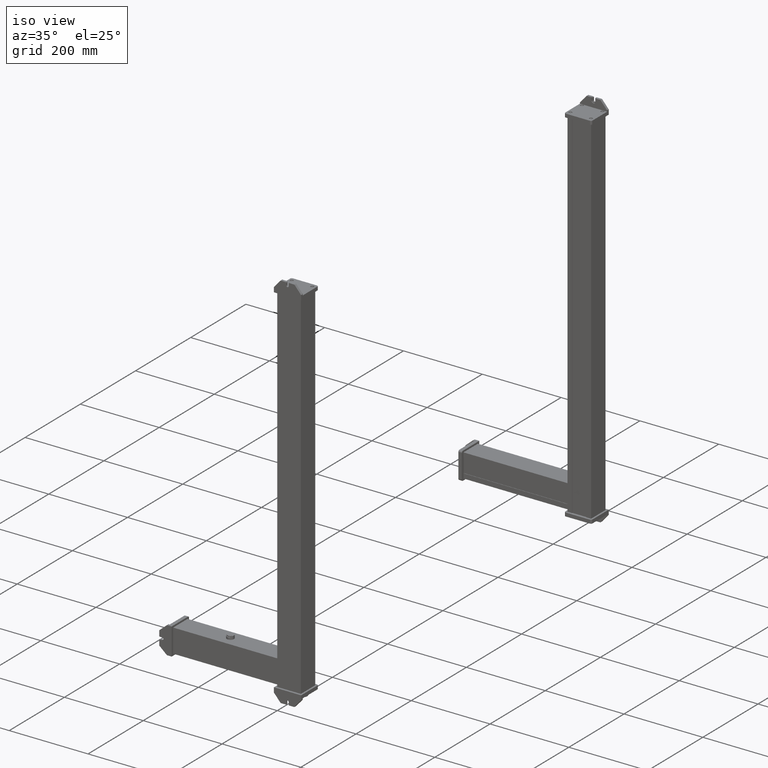
[diagram: clean part render]
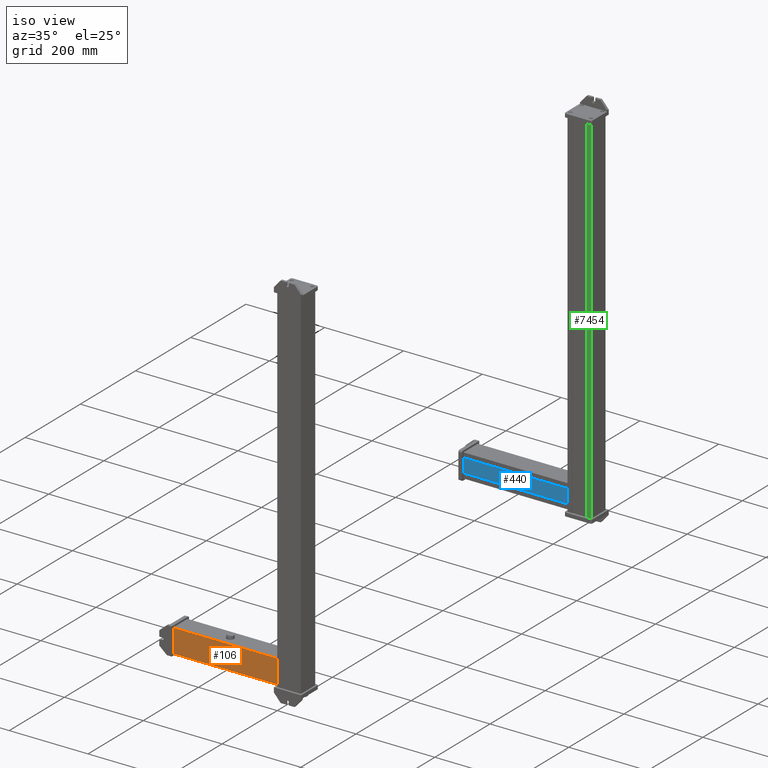
[diagram: same view with three faces highlighted in distinct colors, each labeled with its STEP entity id]
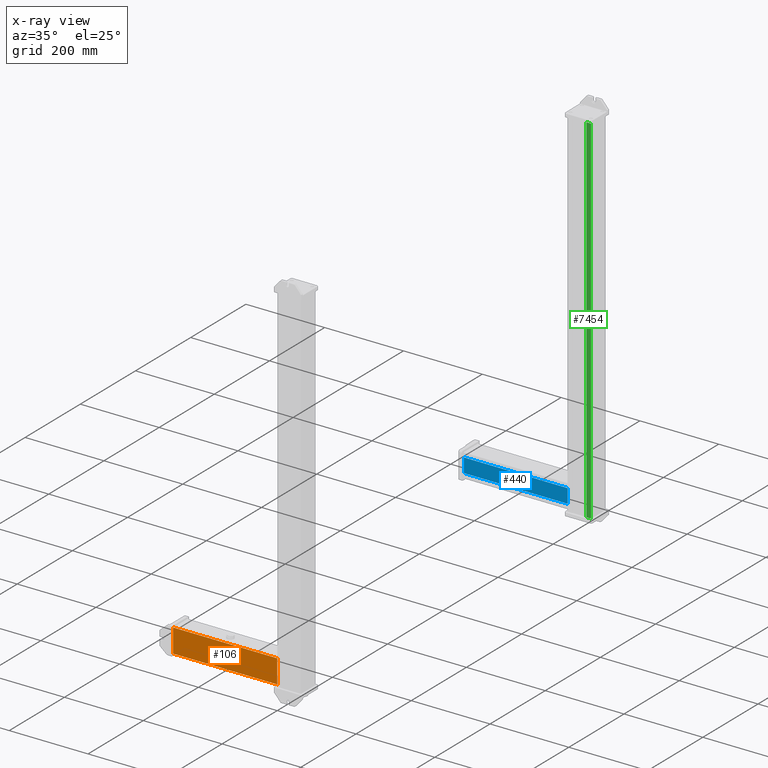
[diagram: x-ray of the same camera — body ghosted, the three highlighted faces saturated]
A machine part, iso view with three faces highlighted in distinct colors.
The next image is the same camera in x-ray (body ghosted, the three faces saturated) — at least one of them is partly hidden behind the body in this view.
Their STEP definitions:

[orange] entity #106 — the highlighted planar face has unit normal (-0, -1, -0).
#67=CARTESIAN_POINT('Axis2P3D Location',(0.,0.,0.)) ;
#72=CARTESIAN_POINT('Line Origine',(0.,0.,132.)) ;
#76=CARTESIAN_POINT('Vertex',(0.,0.,0.)) ;
#78=CARTESIAN_POINT('Vertex',(0.,0.,264.)) ;
#81=CARTESIAN_POINT('Line Origine',(30.,0.,0.)) ;
#85=CARTESIAN_POINT('Vertex',(60.,0.,0.)) ;
#88=CARTESIAN_POINT('Line Origine',(60.,0.,132.)) ;
#92=CARTESIAN_POINT('Vertex',(60.,0.,264.)) ;
#95=CARTESIAN_POINT('Line Origine',(30.,0.,264.)) ;
#68=DIRECTION('Axis2P3D Direction',(0.,-1.,0.)) ;
#69=DIRECTION('Axis2P3D XDirection',(1.,0.,0.)) ;
#73=DIRECTION('Vector Direction',(0.,0.,1.)) ;
#82=DIRECTION('Vector Direction',(1.,0.,0.)) ;
#89=DIRECTION('Vector Direction',(0.,0.,1.)) ;
#96=DIRECTION('Vector Direction',(1.,0.,0.)) ;
#70=AXIS2_PLACEMENT_3D('Plane Axis2P3D',#67,#68,#69) ;
#101=ORIENTED_EDGE('',*,*,#80,.F.) ;
#102=ORIENTED_EDGE('',*,*,#87,.T.) ;
#103=ORIENTED_EDGE('',*,*,#94,.T.) ;
#104=ORIENTED_EDGE('',*,*,#99,.F.) ;
#74=VECTOR('Line Direction',#73,1.) ;
#83=VECTOR('Line Direction',#82,1.) ;
#90=VECTOR('Line Direction',#89,1.) ;
#97=VECTOR('Line Direction',#96,1.) ;
#106=ADVANCED_FACE('PartBody',(#105),#71,.T.) ;
#80=EDGE_CURVE('',#77,#79,#75,.T.) ;
#87=EDGE_CURVE('',#77,#86,#84,.T.) ;
#94=EDGE_CURVE('',#86,#93,#91,.T.) ;
#99=EDGE_CURVE('',#79,#93,#98,.T.) ;
#100=EDGE_LOOP('',(#101,#102,#103,#104)) ;
#105=FACE_OUTER_BOUND('',#100,.T.) ;
#75=LINE('Line',#72,#74) ;
#84=LINE('Line',#81,#83) ;
#91=LINE('Line',#88,#90) ;
#98=LINE('Line',#95,#97) ;
#71=PLANE('Plane',#70) ;
#77=VERTEX_POINT('',#76) ;
#79=VERTEX_POINT('',#78) ;
#86=VERTEX_POINT('',#85) ;
#93=VERTEX_POINT('',#92) ;

[blue] entity #440 — the highlighted planar face has unit normal (-0, -1, 0).
#357=CARTESIAN_POINT('Vertex',(12.,51.,0.)) ;
#360=CARTESIAN_POINT('Line Origine',(30.,51.,0.)) ;
#364=CARTESIAN_POINT('Vertex',(48.,51.,0.)) ;
#397=CARTESIAN_POINT('Vertex',(12.,51.,264.)) ;
#400=CARTESIAN_POINT('Line Origine',(12.,51.,132.)) ;
#417=CARTESIAN_POINT('Axis2P3D Location',(48.,51.,0.)) ;
#422=CARTESIAN_POINT('Line Origine',(48.,51.,132.)) ;
#426=CARTESIAN_POINT('Vertex',(48.,51.,264.)) ;
#429=CARTESIAN_POINT('Line Origine',(30.,51.,264.)) ;
#361=DIRECTION('Vector Direction',(-1.,0.,0.)) ;
#401=DIRECTION('Vector Direction',(0.,0.,1.)) ;
#418=DIRECTION('Axis2P3D Direction',(0.,1.,-0.)) ;
#419=DIRECTION('Axis2P3D XDirection',(-1.,0.,0.)) ;
#423=DIRECTION('Vector Direction',(0.,0.,1.)) ;
#430=DIRECTION('Vector Direction',(-1.,0.,0.)) ;
#420=AXIS2_PLACEMENT_3D('Plane Axis2P3D',#417,#418,#419) ;
#435=ORIENTED_EDGE('',*,*,#428,.F.) ;
#436=ORIENTED_EDGE('',*,*,#366,.F.) ;
#437=ORIENTED_EDGE('',*,*,#404,.T.) ;
#438=ORIENTED_EDGE('',*,*,#433,.F.) ;
#362=VECTOR('Line Direction',#361,1.) ;
#402=VECTOR('Line Direction',#401,1.) ;
#424=VECTOR('Line Direction',#423,1.) ;
#431=VECTOR('Line Direction',#430,1.) ;
#440=ADVANCED_FACE('Body.2',(#439),#421,.T.) ;
#366=EDGE_CURVE('',#358,#365,#363,.F.) ;
#404=EDGE_CURVE('',#358,#398,#403,.T.) ;
#428=EDGE_CURVE('',#365,#427,#425,.T.) ;
#433=EDGE_CURVE('',#427,#398,#432,.T.) ;
#434=EDGE_LOOP('',(#435,#436,#437,#438)) ;
#439=FACE_OUTER_BOUND('',#434,.T.) ;
#363=LINE('Line',#360,#362) ;
#403=LINE('Line',#400,#402) ;
#425=LINE('Line',#422,#424) ;
#432=LINE('Line',#429,#431) ;
#421=PLANE('Plane',#420) ;
#358=VERTEX_POINT('',#357) ;
#365=VERTEX_POINT('',#364) ;
#398=VERTEX_POINT('',#397) ;
#427=VERTEX_POINT('',#426) ;

[green] entity #7454 — the highlighted planar face has unit normal (0, -1, 0).
#7305=CARTESIAN_POINT('Axis2P3D Location',(60.,52.,0.)) ;
#7407=CARTESIAN_POINT('Vertex',(12.,52.,0.)) ;
#7410=CARTESIAN_POINT('Line Origine',(12.,52.,453.)) ;
#7414=CARTESIAN_POINT('Vertex',(12.,52.,906.)) ;
#7429=CARTESIAN_POINT('Line Origine',(6.,52.,0.)) ;
#7433=CARTESIAN_POINT('Vertex',(3.5527136788E-015,52.,0.)) ;
#7436=CARTESIAN_POINT('Line Origine',(7.1054273576E-015,52.,453.)) ;
#7440=CARTESIAN_POINT('Vertex',(3.5527136788E-015,52.,906.)) ;
#7443=CARTESIAN_POINT('Line Origine',(6.,52.,906.)) ;
#7306=DIRECTION('Axis2P3D Direction',(0.,1.,-0.)) ;
#7307=DIRECTION('Axis2P3D XDirection',(-1.,0.,0.)) ;
#7411=DIRECTION('Vector Direction',(0.,0.,1.)) ;
#7430=DIRECTION('Vector Direction',(-1.,0.,0.)) ;
#7437=DIRECTION('Vector Direction',(0.,0.,1.)) ;
#7444=DIRECTION('Vector Direction',(-1.,0.,0.)) ;
#7308=AXIS2_PLACEMENT_3D('Plane Axis2P3D',#7305,#7306,#7307) ;
#7449=ORIENTED_EDGE('',*,*,#7416,.F.) ;
#7450=ORIENTED_EDGE('',*,*,#7435,.T.) ;
#7451=ORIENTED_EDGE('',*,*,#7442,.T.) ;
#7452=ORIENTED_EDGE('',*,*,#7447,.F.) ;
#7412=VECTOR('Line Direction',#7411,1.) ;
#7431=VECTOR('Line Direction',#7430,1.) ;
#7438=VECTOR('Line Direction',#7437,1.) ;
#7445=VECTOR('Line Direction',#7444,1.) ;
#7454=ADVANCED_FACE('PartBody',(#7453),#7309,.T.) ;
#7416=EDGE_CURVE('',#7408,#7415,#7413,.T.) ;
#7435=EDGE_CURVE('',#7408,#7434,#7432,.T.) ;
#7442=EDGE_CURVE('',#7434,#7441,#7439,.T.) ;
#7447=EDGE_CURVE('',#7415,#7441,#7446,.T.) ;
#7448=EDGE_LOOP('',(#7449,#7450,#7451,#7452)) ;
#7453=FACE_OUTER_BOUND('',#7448,.T.) ;
#7413=LINE('Line',#7410,#7412) ;
#7432=LINE('Line',#7429,#7431) ;
#7439=LINE('Line',#7436,#7438) ;
#7446=LINE('Line',#7443,#7445) ;
#7309=PLANE('Plane',#7308) ;
#7408=VERTEX_POINT('',#7407) ;
#7415=VERTEX_POINT('',#7414) ;
#7434=VERTEX_POINT('',#7433) ;
#7441=VERTEX_POINT('',#7440) ;